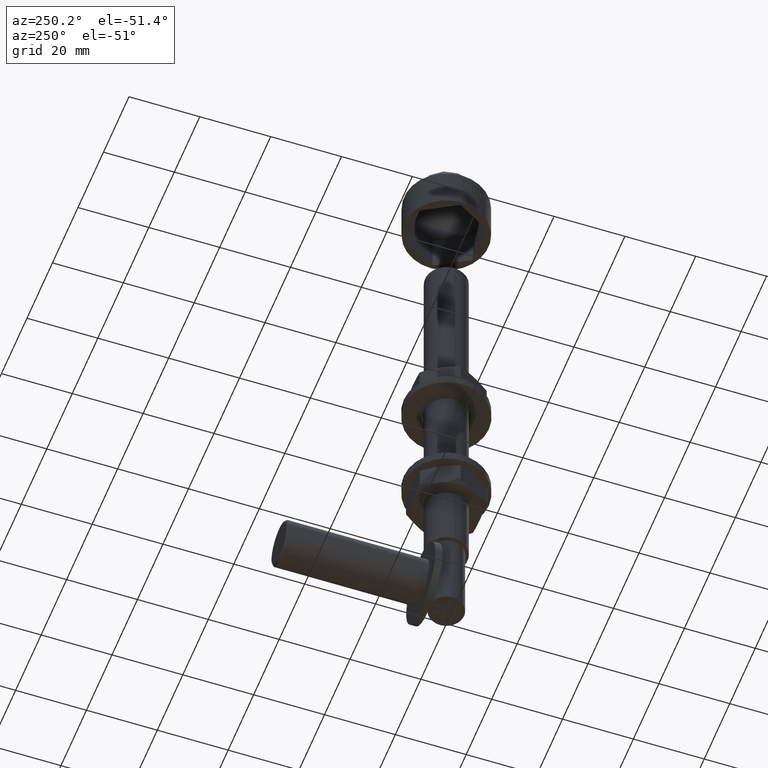
[diagram: clean part render]
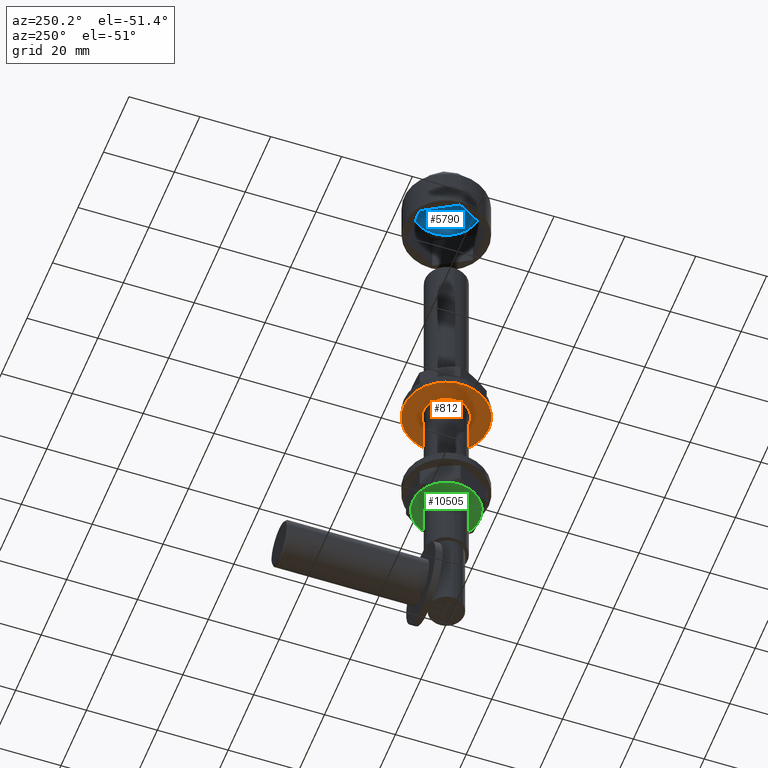
[diagram: same view with three faces highlighted in distinct colors, each labeled with its STEP entity id]
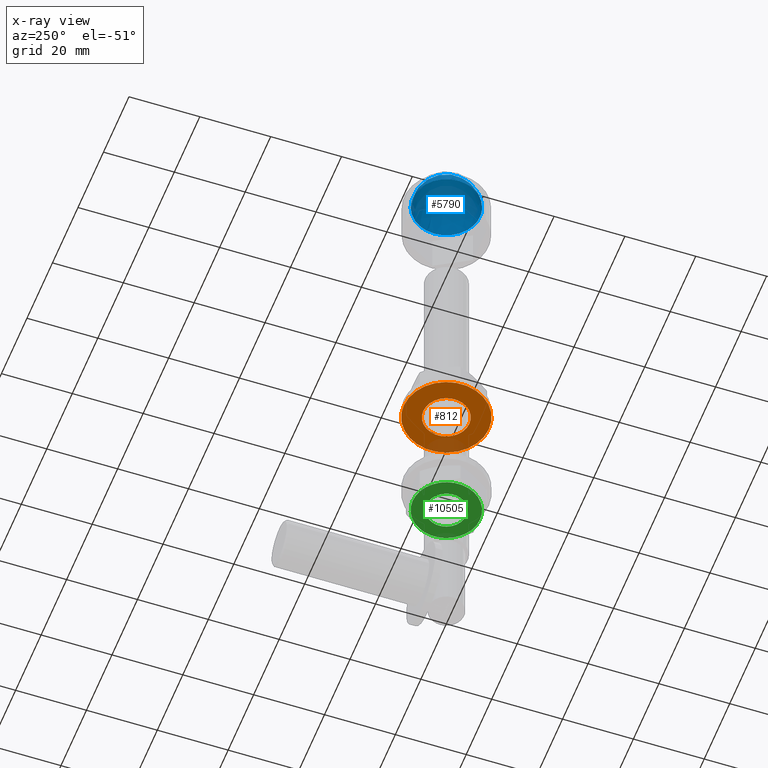
[diagram: x-ray of the same camera — body ghosted, the three highlighted faces saturated]
A machine part, auxiliary view with three faces highlighted in distinct colors.
The next image is the same camera in x-ray (body ghosted, the three faces saturated) — at least one of them is partly hidden behind the body in this view.
Their STEP definitions:

[orange] entity #812 — the highlighted planar face has unit normal (0, 0, -1).
#345 = PLANE ( 'NONE',  #9152 ) ;
#571 = CARTESIAN_POINT ( 'NONE',  ( 0.000000000000000000, 2.500000000000000000, 6.500000000000000888 ) ) ;
#812 = ADVANCED_FACE ( 'NONE', ( #9243, #9609 ), #345, .T. ) ;
#1765 = EDGE_CURVE ( 'NONE', #2785, #2785, #2308, .T. ) ;
#2308 = CIRCLE ( 'NONE', #9544, 12.00000000000000178 ) ;
#2526 = DIRECTION ( 'NONE',  ( 0.000000000000000000, 1.000000000000000000, 0.000000000000000000 ) ) ;
#2636 = CARTESIAN_POINT ( 'NONE',  ( 0.000000000000000000, 2.500000000000000000, 0.000000000000000000 ) ) ;
#2780 = DIRECTION ( 'NONE',  ( 0.000000000000000000, 1.000000000000000000, 0.000000000000000000 ) ) ;
#2785 = VERTEX_POINT ( 'NONE', #8903 ) ;
#3008 = DIRECTION ( 'NONE',  ( 0.000000000000000000, 1.000000000000000000, 0.000000000000000000 ) ) ;
#3961 = CARTESIAN_POINT ( 'NONE',  ( 0.000000000000000000, 2.500000000000000000, 0.000000000000000000 ) ) ;
#4002 = CIRCLE ( 'NONE', #10020, 6.500000000000000888 ) ;
#5860 = ORIENTED_EDGE ( 'NONE', *, *, #1765, .T. ) ;
#8038 = VERTEX_POINT ( 'NONE', #571 ) ;
#8903 = CARTESIAN_POINT ( 'NONE',  ( 0.000000000000000000, 2.500000000000000000, 12.00000000000000178 ) ) ;
#9152 = AXIS2_PLACEMENT_3D ( 'NONE', #3961, #2780, #10017 ) ;
#9243 = FACE_OUTER_BOUND ( 'NONE', #15422, .T. ) ;
#9544 = AXIS2_PLACEMENT_3D ( 'NONE', #10196, #3008, #13844 ) ;
#9609 = FACE_BOUND ( 'NONE', #12475, .T. ) ;
#10017 = DIRECTION ( 'NONE',  ( 0.000000000000000000, -0.000000000000000000, 1.000000000000000000 ) ) ;
#10020 = AXIS2_PLACEMENT_3D ( 'NONE', #2636, #2526, #12011 ) ;
#10196 = CARTESIAN_POINT ( 'NONE',  ( 0.000000000000000000, 2.500000000000000000, 0.000000000000000000 ) ) ;
#10679 = ORIENTED_EDGE ( 'NONE', *, *, #12881, .F. ) ;
#12011 = DIRECTION ( 'NONE',  ( 0.000000000000000000, 0.000000000000000000, 1.000000000000000000 ) ) ;
#12475 = EDGE_LOOP ( 'NONE', ( #10679 ) ) ;
#12881 = EDGE_CURVE ( 'NONE', #8038, #8038, #4002, .T. ) ;
#13844 = DIRECTION ( 'NONE',  ( 0.000000000000000000, 0.000000000000000000, 1.000000000000000000 ) ) ;
#15422 = EDGE_LOOP ( 'NONE', ( #5860 ) ) ;

[blue] entity #5790 — the highlighted spherical surface has radius 9.5805 mm.
#339 = EDGE_LOOP ( 'NONE', ( #2215 ) ) ;
#968 = EDGE_CURVE ( 'NONE', #12299, #12299, #13123, .T. ) ;
#1038 = AXIS2_PLACEMENT_3D ( 'NONE', #5360, #6410, #6508 ) ;
#2215 = ORIENTED_EDGE ( 'NONE', *, *, #968, .F. ) ;
#2462 = DIRECTION ( 'NONE',  ( -1.000000000000000000, -3.652049423109069799E-16, 0.000000000000000000 ) ) ;
#5106 = AXIS2_PLACEMENT_3D ( 'NONE', #13279, #6231, #2462 ) ;
#5360 = CARTESIAN_POINT ( 'NONE',  ( 2.524354896707237777E-26, 10.66319444444444997, 0.000000000000000000 ) ) ;
#5790 = ADVANCED_FACE ( 'NONE', ( #12495 ), #10099, .F. ) ;
#6231 = DIRECTION ( 'NONE',  ( -4.435642450600503880E-16, 1.000000000000000000, -0.000000000000000000 ) ) ;
#6410 = DIRECTION ( 'NONE',  ( 0.000000000000000000, 0.000000000000000000, -1.000000000000000000 ) ) ;
#6508 = DIRECTION ( 'NONE',  ( 1.000000000000000000, 3.621380549888468466E-16, 0.000000000000000000 ) ) ;
#10099 = SPHERICAL_SURFACE ( 'NONE', #1038, 9.580453929539292091 ) ;
#10201 = CARTESIAN_POINT ( 'NONE',  ( -9.499999999999992895, 11.90218495934958476, 0.000000000000000000 ) ) ;
#12299 = VERTEX_POINT ( 'NONE', #10201 ) ;
#12495 = FACE_OUTER_BOUND ( 'NONE', #339, .T. ) ;
#13123 = CIRCLE ( 'NONE', #5106, 9.499999999999994671 ) ;
#13279 = CARTESIAN_POINT ( 'NONE',  ( 2.159320426405904822E-15, 11.90218495934958831, 0.000000000000000000 ) ) ;

[green] entity #10505 — the highlighted planar face has unit normal (0, 0, 1).
#153 = AXIS2_PLACEMENT_3D ( 'NONE', #8137, #964, #2059 ) ;
#712 = ORIENTED_EDGE ( 'NONE', *, *, #2115, .T. ) ;
#780 = AXIS2_PLACEMENT_3D ( 'NONE', #1760, #8900, #2756 ) ;
#964 = DIRECTION ( 'NONE',  ( -0.000000000000000000, -1.000000000000000000, -0.000000000000000000 ) ) ;
#1281 = EDGE_CURVE ( 'NONE', #8396, #2865, #15212, .T. ) ;
#1513 = AXIS2_PLACEMENT_3D ( 'NONE', #10818, #5008, #6219 ) ;
#1570 = VERTEX_POINT ( 'NONE', #14129 ) ;
#1625 = CARTESIAN_POINT ( 'NONE',  ( -8.227241335952165002, -3.500000000000000000, -4.750000000000000000 ) ) ;
#1655 = VERTEX_POINT ( 'NONE', #7641 ) ;
#1760 = CARTESIAN_POINT ( 'NONE',  ( 0.000000000000000000, -3.500000000000000000, 0.000000000000000000 ) ) ;
#2003 = CARTESIAN_POINT ( 'NONE',  ( 0.000000000000000000, -3.500000000000000000, 0.000000000000000000 ) ) ;
#2054 = DIRECTION ( 'NONE',  ( -0.000000000000000000, -1.000000000000000000, -0.000000000000000000 ) ) ;
#2059 = DIRECTION ( 'NONE',  ( -3.552713678800500929E-15, 0.000000000000000000, 1.000000000000000000 ) ) ;
#2115 = EDGE_CURVE ( 'NONE', #1570, #8396, #13887, .T. ) ;
#2756 = DIRECTION ( 'NONE',  ( 0.000000000000000000, -0.000000000000000000, 1.000000000000000000 ) ) ;
#2792 = EDGE_CURVE ( 'NONE', #2865, #11048, #6573, .T. ) ;
#2797 = CARTESIAN_POINT ( 'NONE',  ( -8.227241335952165002, -3.500000000000000000, 4.749999999999999112 ) ) ;
#2865 = VERTEX_POINT ( 'NONE', #1625 ) ;
#3384 = ORIENTED_EDGE ( 'NONE', *, *, #1281, .T. ) ;
#3591 = EDGE_LOOP ( 'NONE', ( #13218 ) ) ;
#3640 = DIRECTION ( 'NONE',  ( -0.000000000000000000, -1.000000000000000000, -0.000000000000000000 ) ) ;
#3883 = CARTESIAN_POINT ( 'NONE',  ( 0.000000000000000000, -3.500000000000000000, 0.000000000000000000 ) ) ;
#4587 = EDGE_CURVE ( 'NONE', #5524, #14824, #12712, .T. ) ;
#4762 = EDGE_CURVE ( 'NONE', #14824, #1570, #10306, .T. ) ;
#5008 = DIRECTION ( 'NONE',  ( -0.000000000000000000, -1.000000000000000000, -0.000000000000000000 ) ) ;
#5165 = AXIS2_PLACEMENT_3D ( 'NONE', #3883, #12192, #14745 ) ;
#5524 = VERTEX_POINT ( 'NONE', #8055 ) ;
#6031 = DIRECTION ( 'NONE',  ( 1.776356839400250465E-15, 0.000000000000000000, 1.000000000000000000 ) ) ;
#6084 = FACE_OUTER_BOUND ( 'NONE', #11697, .T. ) ;
#6219 = DIRECTION ( 'NONE',  ( 0.000000000000000000, 0.000000000000000000, 1.000000000000000000 ) ) ;
#6573 = CIRCLE ( 'NONE', #11709, 9.499999999999998224 ) ;
#6673 = CARTESIAN_POINT ( 'NONE',  ( 8.227241335952165002, -3.500000000000000000, 4.749999999999998224 ) ) ;
#7591 = FACE_BOUND ( 'NONE', #3591, .T. ) ;
#7641 = CARTESIAN_POINT ( 'NONE',  ( 0.000000000000000000, -3.500000000000000000, 5.600000000000000533 ) ) ;
#7847 = AXIS2_PLACEMENT_3D ( 'NONE', #12233, #11149, #10027 ) ;
#7926 = EDGE_CURVE ( 'NONE', #11048, #5524, #10798, .T. ) ;
#8055 = CARTESIAN_POINT ( 'NONE',  ( 8.227241335952163226, -3.500000000000000000, -4.750000000000003553 ) ) ;
#8137 = CARTESIAN_POINT ( 'NONE',  ( 0.000000000000000000, -3.500000000000000000, 0.000000000000000000 ) ) ;
#8396 = VERTEX_POINT ( 'NONE', #2797 ) ;
#8900 = DIRECTION ( 'NONE',  ( 0.000000000000000000, 1.000000000000000000, 0.000000000000000000 ) ) ;
#8956 = PLANE ( 'NONE',  #780 ) ;
#9264 = AXIS2_PLACEMENT_3D ( 'NONE', #2003, #2054, #10434 ) ;
#10027 = DIRECTION ( 'NONE',  ( 0.000000000000000000, 0.000000000000000000, 1.000000000000000000 ) ) ;
#10306 = CIRCLE ( 'NONE', #153, 9.499999999999998224 ) ;
#10407 = DIRECTION ( 'NONE',  ( 0.000000000000000000, 0.000000000000000000, 1.000000000000000000 ) ) ;
#10434 = DIRECTION ( 'NONE',  ( 0.000000000000000000, 0.000000000000000000, 1.000000000000000000 ) ) ;
#10505 = ADVANCED_FACE ( 'NONE', ( #7591, #6084 ), #8956, .F. ) ;
#10798 = CIRCLE ( 'NONE', #5165, 9.499999999999998224 ) ;
#10818 = CARTESIAN_POINT ( 'NONE',  ( 0.000000000000000000, -3.500000000000000000, 0.000000000000000000 ) ) ;
#10837 = CARTESIAN_POINT ( 'NONE',  ( 0.000000000000000000, -3.500000000000000000, 0.000000000000000000 ) ) ;
#11048 = VERTEX_POINT ( 'NONE', #14627 ) ;
#11149 = DIRECTION ( 'NONE',  ( -0.000000000000000000, -1.000000000000000000, -0.000000000000000000 ) ) ;
#11416 = DIRECTION ( 'NONE',  ( 0.000000000000000000, 1.000000000000000000, 0.000000000000000000 ) ) ;
#11697 = EDGE_LOOP ( 'NONE', ( #14977, #712, #3384, #13040, #12438, #14122 ) ) ;
#11709 = AXIS2_PLACEMENT_3D ( 'NONE', #10837, #3640, #6031 ) ;
#12080 = AXIS2_PLACEMENT_3D ( 'NONE', #13751, #11416, #10407 ) ;
#12192 = DIRECTION ( 'NONE',  ( 0.000000000000000000, -1.000000000000000000, 0.000000000000000000 ) ) ;
#12233 = CARTESIAN_POINT ( 'NONE',  ( 0.000000000000000000, -3.500000000000000000, 0.000000000000000000 ) ) ;
#12438 = ORIENTED_EDGE ( 'NONE', *, *, #7926, .T. ) ;
#12712 = CIRCLE ( 'NONE', #7847, 9.499999999999998224 ) ;
#13040 = ORIENTED_EDGE ( 'NONE', *, *, #2792, .T. ) ;
#13218 = ORIENTED_EDGE ( 'NONE', *, *, #13680, .T. ) ;
#13297 = CIRCLE ( 'NONE', #12080, 5.600000000000000533 ) ;
#13680 = EDGE_CURVE ( 'NONE', #1655, #1655, #13297, .T. ) ;
#13751 = CARTESIAN_POINT ( 'NONE',  ( 0.000000000000000000, -3.500000000000000000, 0.000000000000000000 ) ) ;
#13887 = CIRCLE ( 'NONE', #9264, 9.499999999999998224 ) ;
#14122 = ORIENTED_EDGE ( 'NONE', *, *, #4587, .T. ) ;
#14129 = CARTESIAN_POINT ( 'NONE',  ( 0.000000000000000000, -3.500000000000000000, 9.499999999999998224 ) ) ;
#14627 = CARTESIAN_POINT ( 'NONE',  ( -1.502314598737159623E-15, -3.500000000000000000, -9.499999999999998224 ) ) ;
#14745 = DIRECTION ( 'NONE',  ( 0.000000000000000000, 0.000000000000000000, -1.000000000000000000 ) ) ;
#14824 = VERTEX_POINT ( 'NONE', #6673 ) ;
#14977 = ORIENTED_EDGE ( 'NONE', *, *, #4762, .T. ) ;
#15212 = CIRCLE ( 'NONE', #1513, 9.499999999999998224 ) ;